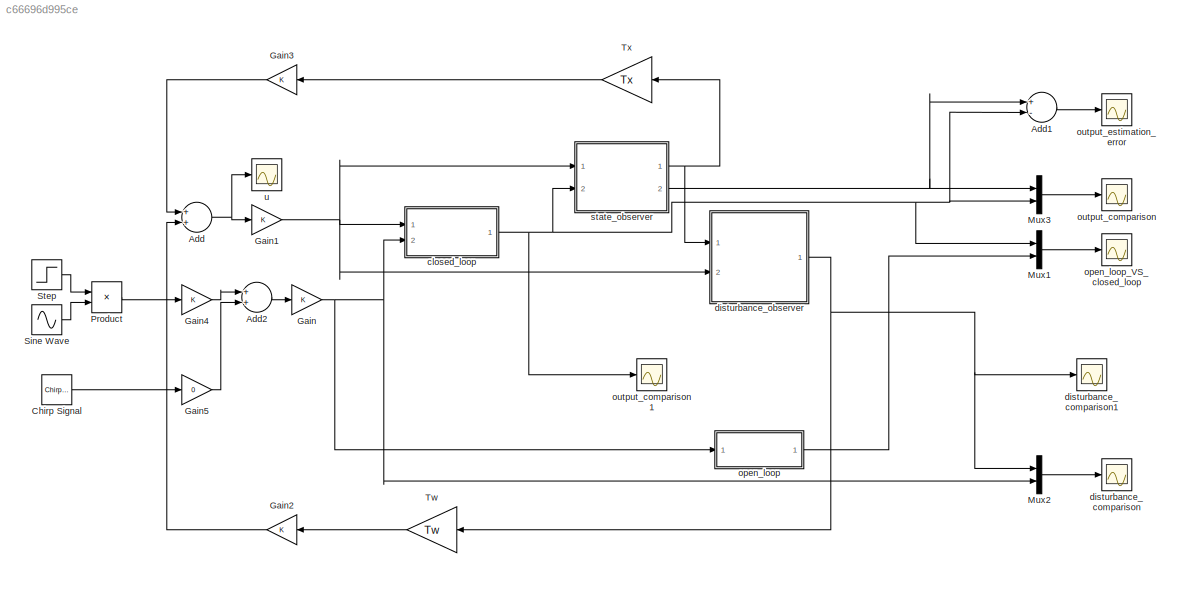
MODEL slx_c66696d995ce
KIND model
CONFIG AbsTol = auto
CONFIG FixedStep = 1e-3
CONFIG MaxStep = 1e-3
CONFIG MinStep = auto
CONFIG RelTol = 1e-3
CONFIG SampleTimeConstraint = Unconstrained
CONFIG Solver = ode45
CONFIG SolverMode = Auto
CONFIG SolverName = ode45
CONFIG StartTime = 0.0
CONFIG StopTime = 10
BLOCK [Sum] Add
  InputSameDT = off
  OutDataTypeStr = Inherit: Inherit via internal rule
  Ports = [2, 1]
  SaturateOnIntegerOverflow = off
BLOCK [Sum] Add1
  InputSameDT = off
  Inputs = +-
  OutDataTypeStr = Inherit: Inherit via internal rule
  Ports = [2, 1]
  SaturateOnIntegerOverflow = off
BLOCK [Sum] Add2
  InputSameDT = off
  OutDataTypeStr = Inherit: Inherit via internal rule
  Ports = [2, 1]
  SaturateOnIntegerOverflow = off
BLOCK [Reference] Chirp Signal  REF=simulink/Sources/Chirp Signal
  Ports = [0, 1]
  SourceBlock = simulink/Sources/Chirp Signal
  SourceType = chirp
  T = 100
  VectorParams1D = on
  f1 = 0.1/2/pi
  f2 = 1.5/2/pi
BLOCK [Gain] Gain
  OutDataTypeStr = Inherit: Inherit via internal rule
  ParamDataTypeStr = Inherit: Inherit via internal rule
  SaturateOnIntegerOverflow = off
BLOCK [Gain] Gain1
  OutDataTypeStr = Inherit: Inherit via internal rule
  ParamDataTypeStr = Inherit: Inherit via internal rule
  SaturateOnIntegerOverflow = off
BLOCK [Gain] Gain2
  OutDataTypeStr = Inherit: Inherit via internal rule
  ParamDataTypeStr = Inherit: Inherit via internal rule
  SaturateOnIntegerOverflow = off
BLOCK [Gain] Gain3
  OutDataTypeStr = Inherit: Inherit via internal rule
  ParamDataTypeStr = Inherit: Inherit via internal rule
  SaturateOnIntegerOverflow = off
BLOCK [Gain] Gain4
  OutDataTypeStr = Inherit: Inherit via internal rule
  ParamDataTypeStr = Inherit: Inherit via internal rule
  SaturateOnIntegerOverflow = off
BLOCK [Gain] Gain5
  Gain = 0
  OutDataTypeStr = Inherit: Inherit via internal rule
  ParamDataTypeStr = Inherit: Inherit via internal rule
  SaturateOnIntegerOverflow = off
BLOCK [Mux] Mux1
  DisplayOption = bar
  Inputs = 2
  Ports = [2, 1]
BLOCK [Mux] Mux2
  DisplayOption = bar
  Inputs = 2
  Ports = [2, 1]
BLOCK [Mux] Mux3
  DisplayOption = bar
  Inputs = 2
  Ports = [2, 1]
BLOCK [Product] Product
  InputSameDT = off
  OutDataTypeStr = Inherit: Inherit via internal rule
  Ports = [2, 1]
  RndMeth = Floor
  SaturateOnIntegerOverflow = off
BLOCK [Sin] Sine Wave
  Frequency = 10
  Ports = [0, 1]
  SampleTime = 0
BLOCK [Step] Step
  After = 0
  Before = 8
  SampleTime = 0
BLOCK [Gain] Tw
  Gain = Tw
  Multiplication = Matrix(K*u)
  OutDataTypeStr = Inherit: Inherit via internal rule
  ParamDataTypeStr = Inherit: Inherit via internal rule
  SaturateOnIntegerOverflow = off
BLOCK [Gain] Tx
  Gain = Tx
  Multiplication = Matrix(K*u)
  OutDataTypeStr = Inherit: Inherit via internal rule
  ParamDataTypeStr = Inherit: Inherit via internal rule
  SaturateOnIntegerOverflow = off
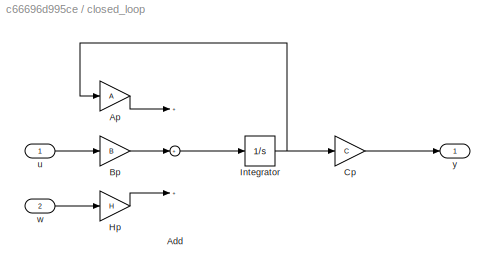
BLOCK [SubSystem] closed_loop
  Ports = [2, 1]
  RequestExecContextInheritance = off
BLOCK [Sum] closed_loop/Add
  InputSameDT = off
  Inputs = +++
  OutDataTypeStr = Inherit: Inherit via internal rule
  Ports = [3, 1]
  SaturateOnIntegerOverflow = off
BLOCK [Gain] closed_loop/Ap
  Gain = A
  Multiplication = Matrix(K*u)
  OutDataTypeStr = Inherit: Inherit via internal rule
  ParamDataTypeStr = Inherit: Inherit via internal rule
  SaturateOnIntegerOverflow = off
BLOCK [Gain] closed_loop/Bp
  Gain = B
  Multiplication = Matrix(K*u)
  OutDataTypeStr = Inherit: Inherit via internal rule
  ParamDataTypeStr = Inherit: Inherit via internal rule
  SaturateOnIntegerOverflow = off
BLOCK [Gain] closed_loop/Cp
  Gain = C
  Multiplication = Matrix(K*u)
  OutDataTypeStr = Inherit: Inherit via internal rule
  ParamDataTypeStr = Inherit: Inherit via internal rule
  SaturateOnIntegerOverflow = off
BLOCK [Gain] closed_loop/Hp
  Gain = H
  Multiplication = Matrix(K*u)
  OutDataTypeStr = Inherit: Inherit via internal rule
  ParamDataTypeStr = Inherit: Inherit via internal rule
  SaturateOnIntegerOverflow = off
BLOCK [Integrator] closed_loop/Integrator
  Ports = [1, 1]
BLOCK [Inport] closed_loop/u
  IconDisplay = Port number
BLOCK [Inport] closed_loop/w
  IconDisplay = Port number
  Port = 2
BLOCK [Outport] closed_loop/y
  IconDisplay = Port number
BLOCK [Scope] disturbance_comparison
  Floating = off
  LimitDataPoints = off
  NumInputPorts = 1
  Ports = [1]
  YMax = 15
  YMin = -15
BLOCK [Scope] disturbance_comparison1
  Floating = off
  LimitDataPoints = off
  NumInputPorts = 1
  Ports = [1]
  SaveName = ScopeData6
  YMax = 15
  YMin = -15
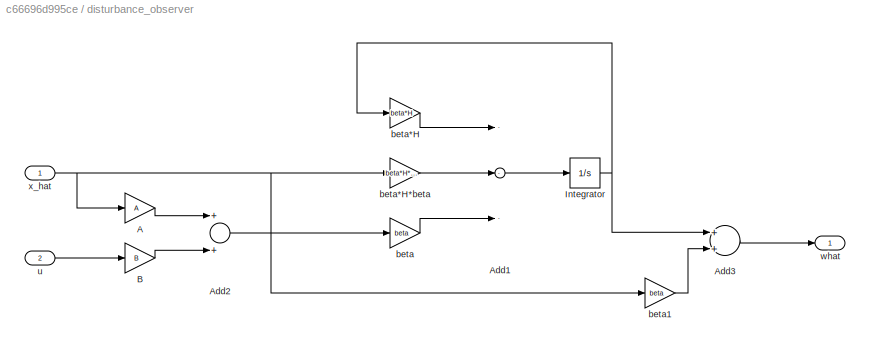
BLOCK [SubSystem] disturbance_observer
  Ports = [2, 1]
  RequestExecContextInheritance = off
BLOCK [Gain] disturbance_observer/A
  Gain = A
  Multiplication = Matrix(K*u)
  OutDataTypeStr = Inherit: Inherit via internal rule
  ParamDataTypeStr = Inherit: Inherit via internal rule
  SaturateOnIntegerOverflow = off
BLOCK [Sum] disturbance_observer/Add1
  InputSameDT = off
  Inputs = ---
  OutDataTypeStr = Inherit: Inherit via internal rule
  Ports = [3, 1]
  SaturateOnIntegerOverflow = off
BLOCK [Sum] disturbance_observer/Add2
  InputSameDT = off
  OutDataTypeStr = Inherit: Inherit via internal rule
  Ports = [2, 1]
  SaturateOnIntegerOverflow = off
BLOCK [Sum] disturbance_observer/Add3
  InputSameDT = off
  OutDataTypeStr = Inherit: Inherit via internal rule
  Ports = [2, 1]
  SaturateOnIntegerOverflow = off
BLOCK [Gain] disturbance_observer/B
  Gain = B
  Multiplication = Matrix(K*u)
  OutDataTypeStr = Inherit: Inherit via internal rule
  ParamDataTypeStr = Inherit: Inherit via internal rule
  SaturateOnIntegerOverflow = off
BLOCK [Integrator] disturbance_observer/Integrator
  Ports = [1, 1]
BLOCK [Gain] disturbance_observer/beta
  Gain = beta
  Multiplication = Matrix(K*u)
  OutDataTypeStr = Inherit: Inherit via internal rule
  ParamDataTypeStr = Inherit: Inherit via internal rule
  SaturateOnIntegerOverflow = off
BLOCK [Gain] disturbance_observer/beta*H
  Gain = beta*H
  Multiplication = Matrix(K*u)
  OutDataTypeStr = Inherit: Inherit via internal rule
  ParamDataTypeStr = Inherit: Inherit via internal rule
  SaturateOnIntegerOverflow = off
BLOCK [Gain] disturbance_observer/beta*H*beta
  Gain = beta*H*beta
  Multiplication = Matrix(K*u)
  OutDataTypeStr = Inherit: Inherit via internal rule
  ParamDataTypeStr = Inherit: Inherit via internal rule
  SaturateOnIntegerOverflow = off
BLOCK [Gain] disturbance_observer/beta1
  Gain = beta
  Multiplication = Matrix(K*u)
  OutDataTypeStr = Inherit: Inherit via internal rule
  ParamDataTypeStr = Inherit: Inherit via internal rule
  SaturateOnIntegerOverflow = off
BLOCK [Inport] disturbance_observer/u
  IconDisplay = Port number
  Port = 2
BLOCK [Outport] disturbance_observer/what
  IconDisplay = Port number
BLOCK [Inport] disturbance_observer/x_hat
  IconDisplay = Port number
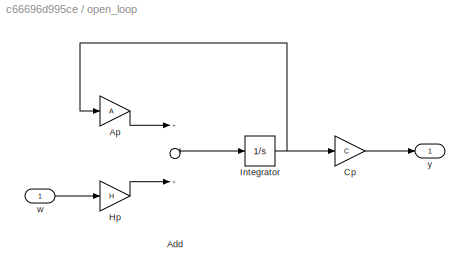
BLOCK [SubSystem] open_loop
  Ports = [1, 1]
  RequestExecContextInheritance = off
BLOCK [Sum] open_loop/Add
  InputSameDT = off
  OutDataTypeStr = Inherit: Inherit via internal rule
  Ports = [2, 1]
  SaturateOnIntegerOverflow = off
BLOCK [Gain] open_loop/Ap
  Gain = A
  Multiplication = Matrix(K*u)
  OutDataTypeStr = Inherit: Inherit via internal rule
  ParamDataTypeStr = Inherit: Inherit via internal rule
  SaturateOnIntegerOverflow = off
BLOCK [Gain] open_loop/Cp
  Gain = C
  Multiplication = Matrix(K*u)
  OutDataTypeStr = Inherit: Inherit via internal rule
  ParamDataTypeStr = Inherit: Inherit via internal rule
  SaturateOnIntegerOverflow = off
BLOCK [Gain] open_loop/Hp
  Gain = H
  Multiplication = Matrix(K*u)
  OutDataTypeStr = Inherit: Inherit via internal rule
  ParamDataTypeStr = Inherit: Inherit via internal rule
  SaturateOnIntegerOverflow = off
BLOCK [Integrator] open_loop/Integrator
  Ports = [1, 1]
BLOCK [Inport] open_loop/w
  IconDisplay = Port number
BLOCK [Outport] open_loop/y
  IconDisplay = Port number
BLOCK [Scope] open_loop_VS_closed_loop
  Floating = off
  LegendLocations = 0.91492     0.85657     0.06499    0.099663
  LimitDataPoints = off
  NumInputPorts = 1
  Ports = [1]
  SaveName = ScopeData4
  ShowLegends = on
  YMax = 3.5e+23
  YMin = -5e+22
BLOCK [Scope] output_comparison
  Floating = off
  LimitDataPoints = off
  NumInputPorts = 1
  Ports = [1]
  SaveName = ScopeData1
  YMax = -2.1684e-19
  YMin = -0.0024
BLOCK [Scope] output_comparison1
  Floating = off
  LimitDataPoints = off
  NumInputPorts = 1
  Ports = [1]
  SaveName = ScopeData5
  YMax = -2.1684e-19
  YMin = -0.0024
BLOCK [Scope] output_estimation_error
  Floating = off
  LimitDataPoints = off
  NumInputPorts = 1
  Ports = [1]
  SaveName = ScopeData3
  YMax = -2.1684e-19
  YMin = -0.0024
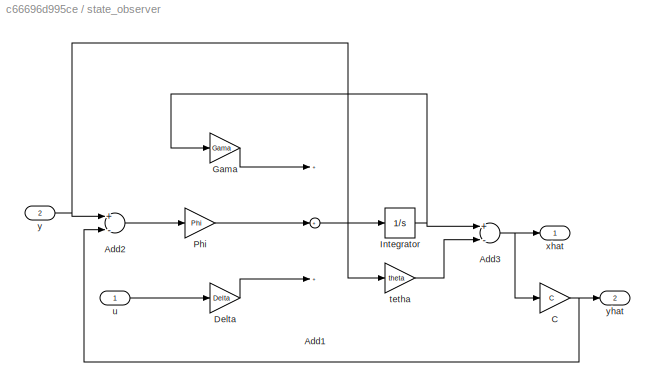
BLOCK [SubSystem] state_observer
  Ports = [2, 2]
  RequestExecContextInheritance = off
BLOCK [Sum] state_observer/Add1
  InputSameDT = off
  Inputs = +++
  OutDataTypeStr = Inherit: Inherit via internal rule
  Ports = [3, 1]
  SaturateOnIntegerOverflow = off
BLOCK [Sum] state_observer/Add2
  InputSameDT = off
  Inputs = +-
  OutDataTypeStr = Inherit: Inherit via internal rule
  Ports = [2, 1]
  SaturateOnIntegerOverflow = off
BLOCK [Sum] state_observer/Add3
  InputSameDT = off
  Inputs = +-
  OutDataTypeStr = Inherit: Inherit via internal rule
  Ports = [2, 1]
  SaturateOnIntegerOverflow = off
BLOCK [Gain] state_observer/C
  Gain = C
  Multiplication = Matrix(K*u)
  OutDataTypeStr = Inherit: Inherit via internal rule
  ParamDataTypeStr = Inherit: Inherit via internal rule
  SaturateOnIntegerOverflow = off
BLOCK [Gain] state_observer/Delta
  Gain = Delta
  Multiplication = Matrix(K*u)
  OutDataTypeStr = Inherit: Inherit via internal rule
  ParamDataTypeStr = Inherit: Inherit via internal rule
  SaturateOnIntegerOverflow = off
BLOCK [Gain] state_observer/Gama
  Gain = Gama
  Multiplication = Matrix(K*u)
  OutDataTypeStr = Inherit: Inherit via internal rule
  ParamDataTypeStr = Inherit: Inherit via internal rule
  SaturateOnIntegerOverflow = off
BLOCK [Integrator] state_observer/Integrator
  Ports = [1, 1]
BLOCK [Gain] state_observer/Phi
  Gain = Phi
  Multiplication = Matrix(K*u)
  OutDataTypeStr = Inherit: Inherit via internal rule
  ParamDataTypeStr = Inherit: Inherit via internal rule
  SaturateOnIntegerOverflow = off
BLOCK [Gain] state_observer/tetha
  Gain = theta
  Multiplication = Matrix(K*u)
  OutDataTypeStr = Inherit: Inherit via internal rule
  ParamDataTypeStr = Inherit: Inherit via internal rule
  SaturateOnIntegerOverflow = off
BLOCK [Inport] state_observer/u
  IconDisplay = Port number
BLOCK [Outport] state_observer/xhat
  IconDisplay = Port number
BLOCK [Inport] state_observer/y
  IconDisplay = Port number
  Port = 2
BLOCK [Outport] state_observer/yhat
  IconDisplay = Port number
  Port = 2
BLOCK [Scope] u
  Floating = off
  LimitDataPoints = off
  NumInputPorts = 1
  Ports = [1]
  SaveName = ScopeData2
LINE Add1:1 -> output_estimation_error:1
LINE Add2:1 -> Gain:1
NET Add:1 -> Gain1:1, u:1
LINE Chirp Signal:1 -> Gain5:1
NET Gain1:1 -> closed_loop:1, disturbance_observer:2, state_observer:1
LINE Gain2:1 -> Add:2
LINE Gain3:1 -> Add:1
LINE Gain4:1 -> Add2:1
LINE Gain5:1 -> Add2:2
NET Gain:1 -> Mux2:2, closed_loop:2, open_loop:1
LINE Mux1:1 -> open_loop_VS_closed_loop:1
LINE Mux2:1 -> disturbance_comparison:1
LINE Mux3:1 -> output_comparison:1
LINE Product:1 -> Gain4:1
LINE Sine Wave:1 -> Product:2
LINE Step:1 -> Product:1
LINE Tw:1 -> Gain2:1
LINE Tx:1 -> Gain3:1
LINE closed_loop/Add:1 -> closed_loop/Integrator:1
LINE closed_loop/Ap:1 -> closed_loop/Add:1
LINE closed_loop/Bp:1 -> closed_loop/Add:2
LINE closed_loop/Cp:1 -> closed_loop/y:1
LINE closed_loop/Hp:1 -> closed_loop/Add:3
NET closed_loop/Integrator:1 -> closed_loop/Ap:1, closed_loop/Cp:1
LINE closed_loop/u:1 -> closed_loop/Bp:1
LINE closed_loop/w:1 -> closed_loop/Hp:1
NET closed_loop:1 -> Add1:2, Mux1:1, Mux3:2, output_comparison1:1, state_observer:2
LINE disturbance_observer/A:1 -> disturbance_observer/Add2:1
LINE disturbance_observer/Add1:1 -> disturbance_observer/Integrator:1
LINE disturbance_observer/Add2:1 -> disturbance_observer/beta:1
LINE disturbance_observer/Add3:1 -> disturbance_observer/what:1
LINE disturbance_observer/B:1 -> disturbance_observer/Add2:2
NET disturbance_observer/Integrator:1 -> disturbance_observer/Add3:1, disturbance_observer/beta*H:1
LINE disturbance_observer/beta*H*beta:1 -> disturbance_observer/Add1:2
LINE disturbance_observer/beta*H:1 -> disturbance_observer/Add1:1
LINE disturbance_observer/beta1:1 -> disturbance_observer/Add3:2
LINE disturbance_observer/beta:1 -> disturbance_observer/Add1:3
LINE disturbance_observer/u:1 -> disturbance_observer/B:1
NET disturbance_observer/x_hat:1 -> disturbance_observer/A:1, disturbance_observer/beta*H*beta:1, disturbance_observer/beta1:1
NET disturbance_observer:1 -> Mux2:1, Tw:1, disturbance_comparison1:1
LINE open_loop/Add:1 -> open_loop/Integrator:1
LINE open_loop/Ap:1 -> open_loop/Add:1
LINE open_loop/Cp:1 -> open_loop/y:1
LINE open_loop/Hp:1 -> open_loop/Add:2
NET open_loop/Integrator:1 -> open_loop/Ap:1, open_loop/Cp:1
LINE open_loop/w:1 -> open_loop/Hp:1
LINE open_loop:1 -> Mux1:2
LINE state_observer/Add1:1 -> state_observer/Integrator:1
LINE state_observer/Add2:1 -> state_observer/Phi:1
NET state_observer/Add3:1 -> state_observer/C:1, state_observer/xhat:1
NET state_observer/C:1 -> state_observer/Add2:2, state_observer/yhat:1
LINE state_observer/Delta:1 -> state_observer/Add1:3
LINE state_observer/Gama:1 -> state_observer/Add1:1
NET state_observer/Integrator:1 -> state_observer/Add3:1, state_observer/Gama:1
LINE state_observer/Phi:1 -> state_observer/Add1:2
LINE state_observer/tetha:1 -> state_observer/Add3:2
LINE state_observer/u:1 -> state_observer/Delta:1
NET state_observer/y:1 -> state_observer/Add2:1, state_observer/tetha:1
NET state_observer:1 -> Tx:1, disturbance_observer:1
NET state_observer:2 -> Add1:1, Mux3:1
note: NET lines group one-source signal fan-out (src -> all destinations, sorted); 1:1 wires keep LINE
